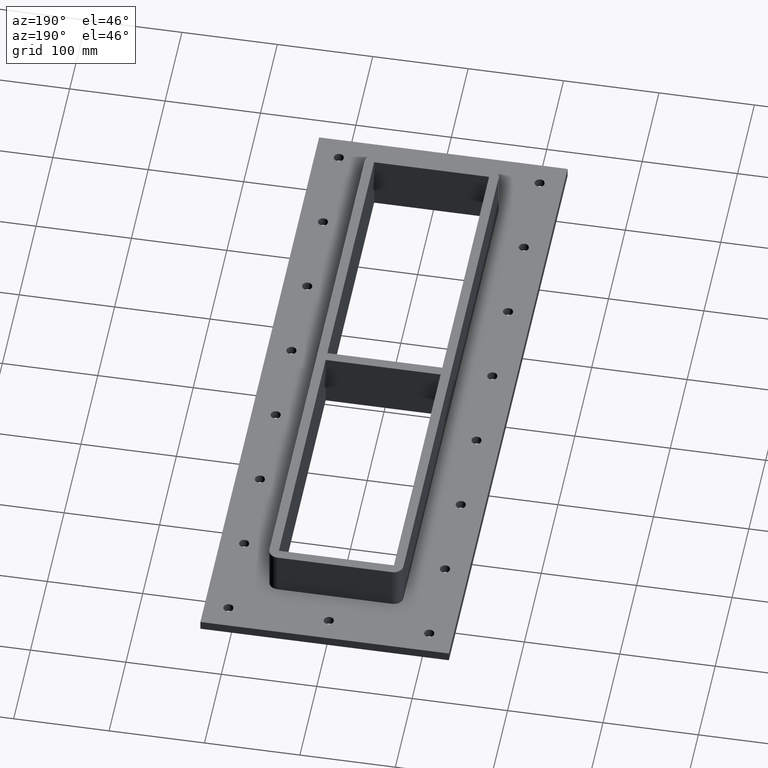
[diagram: clean part render]
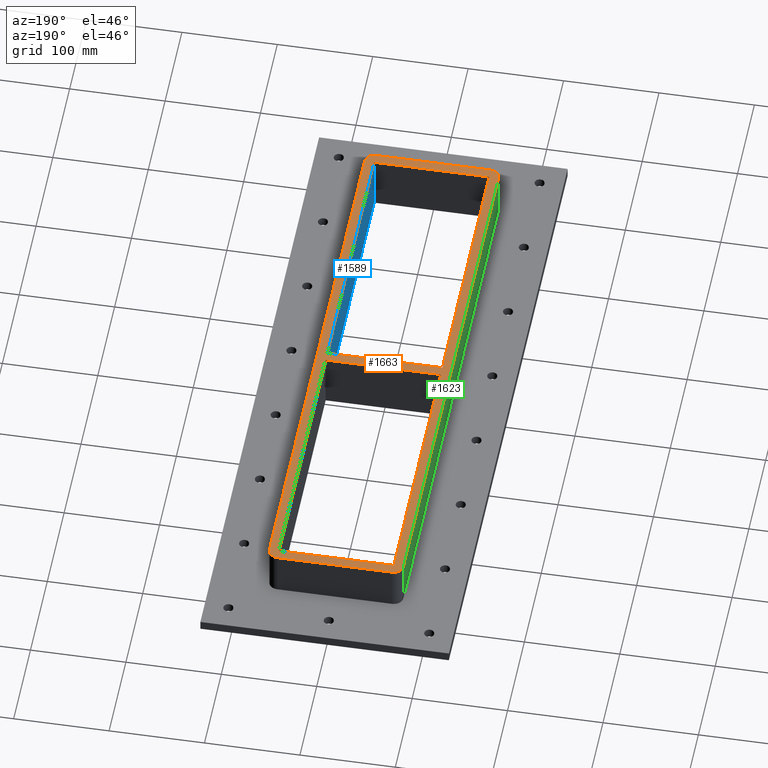
[diagram: same view with three faces highlighted in distinct colors, each labeled with its STEP entity id]
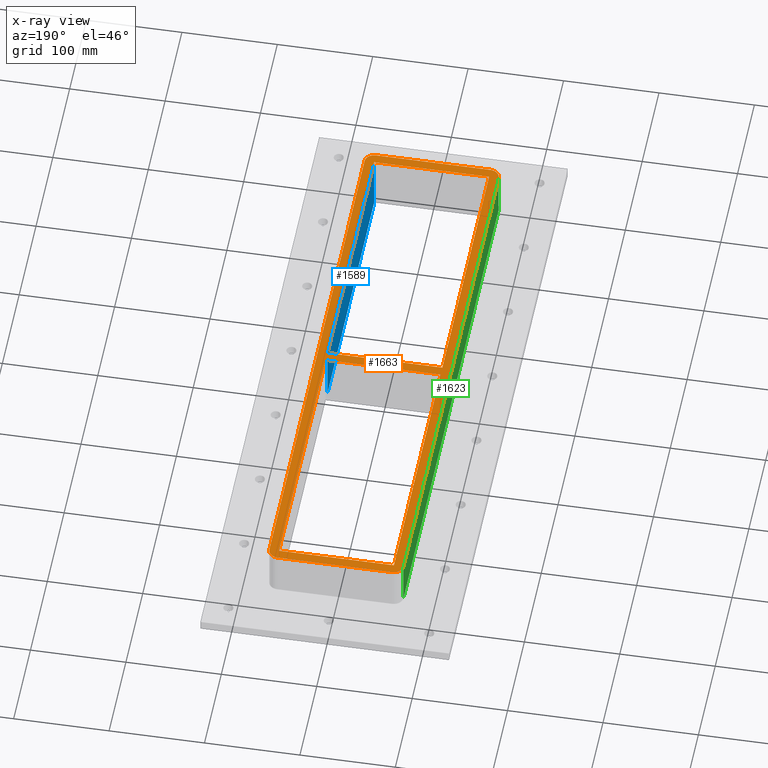
[diagram: x-ray of the same camera — body ghosted, the three highlighted faces saturated]
A machine part, auxiliary view with three faces highlighted in distinct colors.
The next image is the same camera in x-ray (body ghosted, the three faces saturated) — at least one of them is partly hidden behind the body in this view.
Their STEP definitions:

[orange] entity #1663 — the highlighted planar face has unit normal (0, 0, 1).
#1006=CARTESIAN_POINT('',(70.250000000000057,-282.99999999999977,30.0));
#1007=VERTEX_POINT('',#1006);
#1014=CARTESIAN_POINT('',(60.250000000000057,-292.99999999999977,30.0));
#1015=VERTEX_POINT('',#1014);
#1016=CARTESIAN_POINT('',(60.250000000000057,-282.99999999999977,30.0));
#1017=DIRECTION('',(0.0,0.0,-1.0));
#1018=DIRECTION('',(0.707106781186547,-0.707106781186547,0.0));
#1019=AXIS2_PLACEMENT_3D('',#1016,#1017,#1018);
#1020=CIRCLE('',#1019,9.999999999999998);
#1021=EDGE_CURVE('',#1007,#1015,#1020,.T.);
#1062=CARTESIAN_POINT('',(70.249999999999915,283.00000000000023,30.0));
#1063=VERTEX_POINT('',#1062);
#1070=CARTESIAN_POINT('',(70.250000000000057,-282.99999999999977,30.0));
#1071=DIRECTION('',(0.0,1.0,0.0));
#1072=VECTOR('',#1071,566.0);
#1073=LINE('',#1070,#1072);
#1074=EDGE_CURVE('',#1007,#1063,#1073,.T.);
#1111=CARTESIAN_POINT('',(60.249999999999915,293.00000000000023,30.0));
#1112=VERTEX_POINT('',#1111);
#1119=CARTESIAN_POINT('',(60.249999999999915,283.00000000000023,30.0));
#1120=DIRECTION('',(0.0,0.0,-1.0));
#1121=DIRECTION('',(0.707106781186547,0.707106781186547,0.0));
#1122=AXIS2_PLACEMENT_3D('',#1119,#1120,#1121);
#1123=CIRCLE('',#1122,9.999999999999998);
#1124=EDGE_CURVE('',#1112,#1063,#1123,.T.);
#1160=CARTESIAN_POINT('',(-60.250000000000057,293.00000000000028,30.0));
#1161=VERTEX_POINT('',#1160);
#1168=CARTESIAN_POINT('',(60.249999999999915,293.00000000000023,30.0));
#1169=DIRECTION('',(-1.0,0.0,0.0));
#1170=VECTOR('',#1169,120.49999999999997);
#1171=LINE('',#1168,#1170);
#1172=EDGE_CURVE('',#1112,#1161,#1171,.T.);
#1314=CARTESIAN_POINT('',(-60.249999999999844,-292.99999999999977,30.0));
#1315=VERTEX_POINT('',#1314);
#1316=CARTESIAN_POINT('',(-60.249999999999844,-292.99999999999977,30.0));
#1317=DIRECTION('',(1.0,0.0,0.0));
#1318=VECTOR('',#1317,120.49999999999989);
#1319=LINE('',#1316,#1318);
#1320=EDGE_CURVE('',#1315,#1015,#1319,.T.);
#1338=CARTESIAN_POINT('',(-70.249999999999844,-282.99999999999977,30.0));
#1339=VERTEX_POINT('',#1338);
#1340=CARTESIAN_POINT('',(-60.249999999999844,-282.99999999999977,30.0));
#1341=DIRECTION('',(0.0,0.0,-1.0));
#1342=DIRECTION('',(-0.707106781186547,-0.707106781186547,0.0));
#1343=AXIS2_PLACEMENT_3D('',#1340,#1341,#1342);
#1344=CIRCLE('',#1343,9.999999999999998);
#1345=EDGE_CURVE('',#1315,#1339,#1344,.T.);
#1362=CARTESIAN_POINT('',(-70.250000000000057,283.00000000000023,30.0));
#1363=VERTEX_POINT('',#1362);
#1370=CARTESIAN_POINT('',(-60.250000000000057,283.00000000000023,30.0));
#1371=DIRECTION('',(0.0,0.0,-1.0));
#1372=DIRECTION('',(-0.707106781186547,0.707106781186547,0.0));
#1373=AXIS2_PLACEMENT_3D('',#1370,#1371,#1372);
#1374=CIRCLE('',#1373,9.999999999999998);
#1375=EDGE_CURVE('',#1363,#1161,#1374,.T.);
#1421=CARTESIAN_POINT('',(-60.250000000000021,283.00000000000023,30.0));
#1422=VERTEX_POINT('',#1421);
#1429=CARTESIAN_POINT('',(-60.24999999999995,5.000000000000462,30.0));
#1430=VERTEX_POINT('',#1429);
#1431=CARTESIAN_POINT('',(-60.24999999999995,5.000000000000462,30.0));
#1432=DIRECTION('',(0.0,1.0,0.0));
#1433=VECTOR('',#1432,277.99999999999977);
#1434=LINE('',#1431,#1433);
#1435=EDGE_CURVE('',#1430,#1422,#1434,.T.);
#1453=CARTESIAN_POINT('',(60.250000000000092,5.000000000000249,30.0));
#1454=VERTEX_POINT('',#1453);
#1455=CARTESIAN_POINT('',(60.250000000000092,5.000000000000249,30.0));
#1456=DIRECTION('',(-1.0,0.0,0.0));
#1457=VECTOR('',#1456,120.50000000000006);
#1458=LINE('',#1455,#1457);
#1459=EDGE_CURVE('',#1454,#1430,#1458,.T.);
#1477=CARTESIAN_POINT('',(60.250000000000092,283.00000000000023,30.0));
#1478=VERTEX_POINT('',#1477);
#1479=CARTESIAN_POINT('',(60.250000000000092,283.00000000000023,30.0));
#1480=DIRECTION('',(0.0,-1.0,0.0));
#1481=VECTOR('',#1480,278.0);
#1482=LINE('',#1479,#1481);
#1483=EDGE_CURVE('',#1478,#1454,#1482,.T.);
#1501=CARTESIAN_POINT('',(-60.250000000000021,283.00000000000023,30.0));
#1502=DIRECTION('',(1.0,0.0,0.0));
#1503=VECTOR('',#1502,120.50000000000011);
#1504=LINE('',#1501,#1503);
#1505=EDGE_CURVE('',#1422,#1478,#1504,.T.);
#1517=CARTESIAN_POINT('',(-60.249999999999915,-4.999999999999751,30.0));
#1518=VERTEX_POINT('',#1517);
#1525=CARTESIAN_POINT('',(-60.249999999999844,-282.99999999999955,30.0));
#1526=VERTEX_POINT('',#1525);
#1527=CARTESIAN_POINT('',(-60.249999999999844,-282.99999999999955,30.0));
#1528=DIRECTION('',(0.0,1.0,0.0));
#1529=VECTOR('',#1528,277.99999999999977);
#1530=LINE('',#1527,#1529);
#1531=EDGE_CURVE('',#1526,#1518,#1530,.T.);
#1549=CARTESIAN_POINT('',(60.250000000000199,-282.99999999999977,30.0));
#1550=VERTEX_POINT('',#1549);
#1551=CARTESIAN_POINT('',(60.250000000000199,-282.99999999999972,30.0));
#1552=DIRECTION('',(-1.0,0.0,0.0));
#1553=VECTOR('',#1552,120.50000000000003);
#1554=LINE('',#1551,#1553);
#1555=EDGE_CURVE('',#1550,#1526,#1554,.T.);
#1573=CARTESIAN_POINT('',(60.250000000000199,-4.999999999999751,30.0));
#1574=VERTEX_POINT('',#1573);
#1575=CARTESIAN_POINT('',(60.250000000000199,-4.999999999999751,30.0));
#1576=DIRECTION('',(0.0,-1.0,0.0));
#1577=VECTOR('',#1576,278.0);
#1578=LINE('',#1575,#1577);
#1579=EDGE_CURVE('',#1574,#1550,#1578,.T.);
#1597=CARTESIAN_POINT('',(-60.249999999999915,-4.999999999999751,30.0));
#1598=DIRECTION('',(1.0,0.0,0.0));
#1599=VECTOR('',#1598,120.50000000000011);
#1600=LINE('',#1597,#1599);
#1601=EDGE_CURVE('',#1518,#1574,#1600,.T.);
#1614=CARTESIAN_POINT('',(-70.250000000000057,283.00000000000023,30.0));
#1615=DIRECTION('',(0.0,-1.0,0.0));
#1616=VECTOR('',#1615,566.0);
#1617=LINE('',#1614,#1616);
#1618=EDGE_CURVE('',#1363,#1339,#1617,.T.);
#1636=CARTESIAN_POINT('',(1.173643E-014,2.587393E-013,30.0));
#1637=DIRECTION('',(0.0,0.0,1.0));
#1638=DIRECTION('',(1.0,0.0,0.0));
#1639=AXIS2_PLACEMENT_3D('',#1636,#1637,#1638);
#1640=PLANE('',#1639);
#1641=ORIENTED_EDGE('',*,*,#1021,.F.);
#1642=ORIENTED_EDGE('',*,*,#1074,.T.);
#1643=ORIENTED_EDGE('',*,*,#1124,.F.);
#1644=ORIENTED_EDGE('',*,*,#1172,.T.);
#1645=ORIENTED_EDGE('',*,*,#1375,.F.);
#1646=ORIENTED_EDGE('',*,*,#1618,.T.);
#1647=ORIENTED_EDGE('',*,*,#1345,.F.);
#1648=ORIENTED_EDGE('',*,*,#1320,.T.);
#1649=EDGE_LOOP('',(#1641,#1642,#1643,#1644,#1645,#1646,#1647,#1648));
#1650=FACE_OUTER_BOUND('',#1649,.T.);
#1651=ORIENTED_EDGE('',*,*,#1435,.T.);
#1652=ORIENTED_EDGE('',*,*,#1505,.T.);
#1653=ORIENTED_EDGE('',*,*,#1483,.T.);
#1654=ORIENTED_EDGE('',*,*,#1459,.T.);
#1655=EDGE_LOOP('',(#1651,#1652,#1653,#1654));
#1656=FACE_BOUND('',#1655,.T.);
#1657=ORIENTED_EDGE('',*,*,#1579,.T.);
#1658=ORIENTED_EDGE('',*,*,#1555,.T.);
#1659=ORIENTED_EDGE('',*,*,#1531,.T.);
#1660=ORIENTED_EDGE('',*,*,#1601,.T.);
#1661=EDGE_LOOP('',(#1657,#1658,#1659,#1660));
#1662=FACE_BOUND('',#1661,.T.);
#1663=ADVANCED_FACE('',(#1650,#1656,#1662),#1640,.T.);

[blue] entity #1589 — the highlighted planar face has unit normal (1, 0, 0).
#1272=CARTESIAN_POINT('',(60.250000000000199,-282.99999999999977,-30.0));
#1273=VERTEX_POINT('',#1272);
#1274=CARTESIAN_POINT('',(60.250000000000199,-4.999999999999751,-30.0));
#1275=VERTEX_POINT('',#1274);
#1276=CARTESIAN_POINT('',(60.250000000000199,-282.99999999999977,-30.0));
#1277=DIRECTION('',(0.0,1.0,0.0));
#1278=VECTOR('',#1277,278.0);
#1279=LINE('',#1276,#1278);
#1280=EDGE_CURVE('',#1273,#1275,#1279,.T.);
#1549=CARTESIAN_POINT('',(60.250000000000199,-282.99999999999977,30.0));
#1550=VERTEX_POINT('',#1549);
#1557=CARTESIAN_POINT('',(60.250000000000199,-282.99999999999977,30.0));
#1558=DIRECTION('',(0.0,0.0,-1.0));
#1559=VECTOR('',#1558,60.0);
#1560=LINE('',#1557,#1559);
#1561=EDGE_CURVE('',#1550,#1273,#1560,.T.);
#1566=CARTESIAN_POINT('',(60.250000000000199,-4.999999999999751,30.0));
#1567=DIRECTION('',(1.0,0.0,0.0));
#1568=DIRECTION('',(0.0,-1.0,0.0));
#1569=AXIS2_PLACEMENT_3D('',#1566,#1567,#1568);
#1570=PLANE('',#1569);
#1571=ORIENTED_EDGE('',*,*,#1280,.F.);
#1572=ORIENTED_EDGE('',*,*,#1561,.F.);
#1573=CARTESIAN_POINT('',(60.250000000000199,-4.999999999999751,30.0));
#1574=VERTEX_POINT('',#1573);
#1575=CARTESIAN_POINT('',(60.250000000000199,-4.999999999999751,30.0));
#1576=DIRECTION('',(0.0,-1.0,0.0));
#1577=VECTOR('',#1576,278.0);
#1578=LINE('',#1575,#1577);
#1579=EDGE_CURVE('',#1574,#1550,#1578,.T.);
#1580=ORIENTED_EDGE('',*,*,#1579,.F.);
#1581=CARTESIAN_POINT('',(60.250000000000199,-4.999999999999751,30.0));
#1582=DIRECTION('',(0.0,0.0,-1.0));
#1583=VECTOR('',#1582,60.0);
#1584=LINE('',#1581,#1583);
#1585=EDGE_CURVE('',#1574,#1275,#1584,.T.);
#1586=ORIENTED_EDGE('',*,*,#1585,.T.);
#1587=EDGE_LOOP('',(#1571,#1572,#1580,#1586));
#1588=FACE_OUTER_BOUND('',#1587,.T.);
#1589=ADVANCED_FACE('',(#1588),#1570,.F.);

[green] entity #1623 — the highlighted planar face has unit normal (-1, 0, 0).
#797=CARTESIAN_POINT('',(-70.249999999999986,-283.00000000000006,-17.0));
#798=VERTEX_POINT('',#797);
#806=CARTESIAN_POINT('',(-70.250000000000057,283.00000000000006,-17.0));
#807=VERTEX_POINT('',#806);
#808=CARTESIAN_POINT('',(-70.250000000000043,283.0,-17.0));
#809=DIRECTION('',(0.0,-1.0,0.0));
#810=VECTOR('',#809,566.0);
#811=LINE('',#808,#810);
#812=EDGE_CURVE('',#807,#798,#811,.T.);
#1338=CARTESIAN_POINT('',(-70.249999999999844,-282.99999999999977,30.0));
#1339=VERTEX_POINT('',#1338);
#1347=CARTESIAN_POINT('',(-70.249999999999844,-282.99999999999977,30.0));
#1348=DIRECTION('',(0.0,0.0,-1.0));
#1349=VECTOR('',#1348,47.0);
#1350=LINE('',#1347,#1349);
#1351=EDGE_CURVE('',#1339,#798,#1350,.T.);
#1362=CARTESIAN_POINT('',(-70.250000000000057,283.00000000000023,30.0));
#1363=VERTEX_POINT('',#1362);
#1364=CARTESIAN_POINT('',(-70.250000000000057,283.00000000000023,-17.0));
#1365=DIRECTION('',(0.0,0.0,1.0));
#1366=VECTOR('',#1365,47.0);
#1367=LINE('',#1364,#1366);
#1368=EDGE_CURVE('',#807,#1363,#1367,.T.);
#1607=CARTESIAN_POINT('',(-70.250000000000057,293.00000000000028,0.0));
#1608=DIRECTION('',(-1.0,0.0,0.0));
#1609=DIRECTION('',(0.0,-1.0,0.0));
#1610=AXIS2_PLACEMENT_3D('',#1607,#1608,#1609);
#1611=PLANE('',#1610);
#1612=ORIENTED_EDGE('',*,*,#812,.T.);
#1613=ORIENTED_EDGE('',*,*,#1351,.F.);
#1614=CARTESIAN_POINT('',(-70.250000000000057,283.00000000000023,30.0));
#1615=DIRECTION('',(0.0,-1.0,0.0));
#1616=VECTOR('',#1615,566.0);
#1617=LINE('',#1614,#1616);
#1618=EDGE_CURVE('',#1363,#1339,#1617,.T.);
#1619=ORIENTED_EDGE('',*,*,#1618,.F.);
#1620=ORIENTED_EDGE('',*,*,#1368,.F.);
#1621=EDGE_LOOP('',(#1612,#1613,#1619,#1620));
#1622=FACE_OUTER_BOUND('',#1621,.T.);
#1623=ADVANCED_FACE('',(#1622),#1611,.T.);